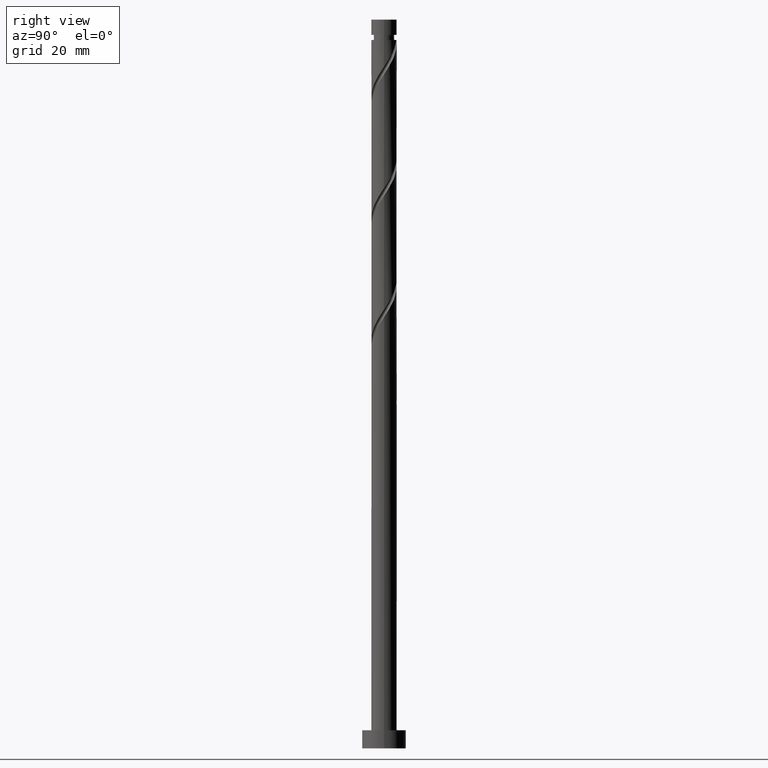
[diagram: clean part render]
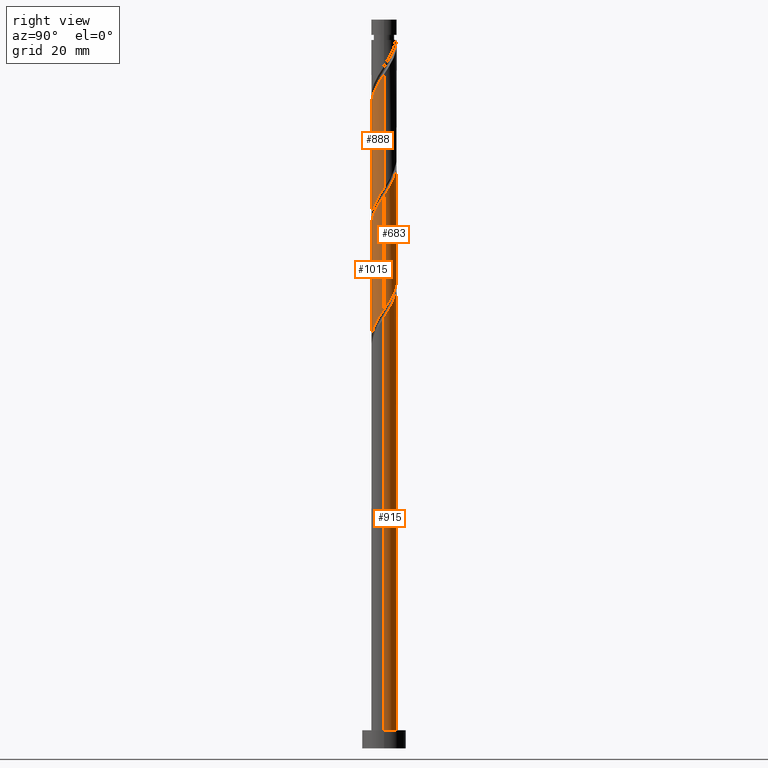
[diagram: same view with one multi-face feature highlighted, each face labeled with its STEP entity id]
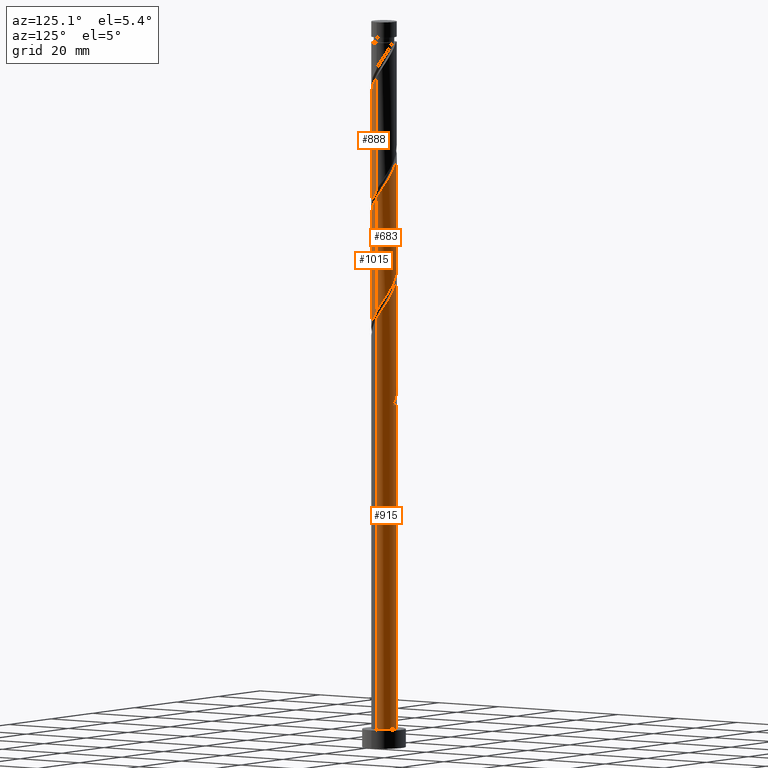
[diagram: same view with one multi-face feature highlighted, each face labeled with its STEP entity id]
A machine part, right view. The highlighted faces form ONE feature: a constant-radius fillet chain: 4 tangent blend faces with common blend radius 3.5 mm. The faces share edges in the B-rep.
A second angle (auxiliary view) of the same feature is appended — it is thin or edge-on in the first view.
Their STEP definitions:
[1] entity #888 (Cylinder):
#2 = CARTESIAN_POINT ( 'NONE',  ( 3.500000000000000444, 4.994564004169114618E-15, 153.7891649966503280 ) ) ;
#12 = CARTESIAN_POINT ( 'NONE',  ( 2.318179077886496575, -2.622221531993313093, 180.5033761192180464 ) ) ;
#23 = CARTESIAN_POINT ( 'NONE',  ( -3.132860395318851854, -1.560508168335766666, 170.7811538969958463 ) ) ;
#31 = DIRECTION ( 'NONE',  ( -1.000000000000000000, 0.000000000000000000, 0.000000000000000000 ) ) ;
#45 = CARTESIAN_POINT ( 'NONE',  ( -3.500000000000000000, -0.1075968308018544345, 137.2856620180118341 ) ) ;
#59 = EDGE_CURVE ( 'NONE', #582, #753, #647, .T. ) ;
#84 = CARTESIAN_POINT ( 'NONE',  ( 3.500000000000005329, -1.106580048827880409E-15, 184.9953650195635362 ) ) ;
#100 = CARTESIAN_POINT ( 'NONE',  ( 3.500000000000000000, 4.286263797015736595E-16, 200.0000000000000000 ) ) ;
#133 = CARTESIAN_POINT ( 'NONE',  ( -3.172338736701779460, -1.548737742842089427, 139.5311538969958463 ) ) ;
#142 = CARTESIAN_POINT ( 'NONE',  ( 1.148059272699402555, -3.338305193185787889, 178.4200427858846751 ) ) ;
#151 = CARTESIAN_POINT ( 'NONE',  ( 0.2149904810675259126, -3.493390773024161788, 145.7811538969958463 ) ) ;
#162 = CARTESIAN_POINT ( 'NONE',  ( 3.318712737967946413, -1.111820922113510024, 183.2811538969958463 ) ) ;
#175 = CARTESIAN_POINT ( 'NONE',  ( 3.430000000000000160, -0.6964912059746354300, 152.7255983414402465 ) ) ;
#186 = LINE ( 'NONE', #614, #1600 ) ;
#210 = ORIENTED_EDGE ( 'NONE', *, *, #332, .F. ) ;
#275 = CARTESIAN_POINT ( 'NONE',  ( 1.548737742842089427, -3.172338736701779460, 147.8644872303291322 ) ) ;
#285 = CARTESIAN_POINT ( 'NONE',  ( 1.932882604688395789, -2.917869914251319141, 148.5589316747735893 ) ) ;
#287 = ORIENTED_EDGE ( 'NONE', *, *, #59, .F. ) ;
#292 = CARTESIAN_POINT ( 'NONE',  ( 3.338305193185780340, -1.148059272699405664, 152.0311538969959031 ) ) ;
#303 = CARTESIAN_POINT ( 'NONE',  ( -3.318712737967941973, -1.111820922113505139, 138.8367094525513608 ) ) ;
#332 = EDGE_CURVE ( 'NONE', #753, #1145, #808, .T. ) ;
#361 = EDGE_CURVE ( 'NONE', #1620, #582, #1708, .T. ) ;
#422 = CARTESIAN_POINT ( 'NONE',  ( -0.6964912059746352080, -3.430000000000000160, 144.3922650081069037 ) ) ;
#433 = CARTESIAN_POINT ( 'NONE',  ( 3.132860395318845192, -1.560508168335767554, 151.3367094525513608 ) ) ;
#451 = CARTESIAN_POINT ( 'NONE',  ( -1.972957063972128333, -2.927415597451910934, 142.3089316747736177 ) ) ;
#475 = EDGE_CURVE ( 'NONE', #1620, #1145, #186, .T. ) ;
#539 = FACE_OUTER_BOUND ( 'NONE', #979, .T. ) ;
#557 = CARTESIAN_POINT ( 'NONE',  ( 1.111820922113505139, -3.318712737967942861, 147.1700427858846467 ) ) ;
#569 = CARTESIAN_POINT ( 'NONE',  ( -2.663401091800861042, -2.317027466534704150, 140.9200427858847036 ) ) ;
#580 = CARTESIAN_POINT ( 'NONE',  ( -2.917869914251318697, -1.932882604688397343, 140.2255983414402465 ) ) ;
#582 = VERTEX_POINT ( 'NONE', #84 ) ;
#588 = CARTESIAN_POINT ( 'NONE',  ( -0.6749041013849236270, -3.465086739234110702, 175.6422650081069605 ) ) ;
#614 = CARTESIAN_POINT ( 'NONE',  ( -3.500000000000000000, 0.000000000000000000, 200.0000000000000000 ) ) ;
#647 = LINE ( 'NONE', #100, #1307 ) ;
#684 = CARTESIAN_POINT ( 'NONE',  ( -3.430000000000005045, -0.6964912059746350970, 169.3922650081069605 ) ) ;
#694 = CARTESIAN_POINT ( 'NONE',  ( -3.500000000000005329, -1.121533833271500447E-15, 168.3286983528968790 ) ) ;
#704 = CARTESIAN_POINT ( 'NONE',  ( -1.148059272699404110, -3.338305193185782116, 143.6978205636625034 ) ) ;
#727 = CARTESIAN_POINT ( 'NONE',  ( -1.548737742842094312, -3.172338736701781681, 174.2533761192180179 ) ) ;
#729 = ORIENTED_EDGE ( 'NONE', *, *, #361, .F. ) ;
#753 = VERTEX_POINT ( 'NONE', #2 ) ;
#808 =( BOUNDED_CURVE ( )  B_SPLINE_CURVE ( 2, ( #951, #1506, #175, #292, #433, #1476, #961, #1487, #285, #275, #557, #1079, #151, #811, #422, #704, #1218, #451, #1087, #569, #580, #133, #303, #1230, #1376, #45, #1108 ),
 .UNSPECIFIED., .F., .T. ) 
 B_SPLINE_CURVE_WITH_KNOTS ( ( 3, 2, 2, 2, 2, 2, 2, 2, 2, 2, 2, 2, 2, 3 ),
 ( 0.5545317669814462391, 0.5625000000000000000, 0.5729166666666666297, 0.5833333333333333703, 0.5937500000000000000, 0.6041666666666666297, 0.6145833333333333703, 0.6250000000000000000, 0.6354166666666666297, 0.6458333333333333703, 0.6562500000000000000, 0.6666666666666666297, 0.6770833333333333703, 0.6795317669814463502 ),
 .UNSPECIFIED. ) 
 CURVE ( )  GEOMETRIC_REPRESENTATION_ITEM ( )  RATIONAL_B_SPLINE_CURVE ( ( 0.9062941362546433899, 0.9031415850403474721, 0.9090909090909231605, 0.9013135103398414172, 0.9090909090909231605, 0.9013135103398414172, 0.9090909090909231605, 0.9013135103398414172, 0.9090909090909231605, 0.9013135103398414172, 0.9090909090909231605, 0.9013135103398414172, 0.9090909090909231605, 0.9013135103398414172, 0.9090909090909231605, 0.9013135103398414172, 0.9090909090909231605, 0.9013135103398414172, 0.9090909090909231605, 0.9013135103398414172, 0.9090909090909231605, 0.9013135103398414172, 0.9090909090909231605, 0.9013135103398414172, 0.9090909090909231605, 0.9072628343904167725, 0.9062941362546432789 ) ) 
 REPRESENTATION_ITEM ( '' )  );
#811 = CARTESIAN_POINT ( 'NONE',  ( -0.2449231392498680548, -3.521694806814219092, 145.0867094525513892 ) ) ;
#822 = CARTESIAN_POINT ( 'NONE',  ( 0.2449231392498654736, -3.521694806814223089, 177.0311538969958463 ) ) ;
#838 = CARTESIAN_POINT ( 'NONE',  ( 2.917869914251321362, -1.932882604688402672, 181.8922650081069605 ) ) ;
#850 = CARTESIAN_POINT ( 'NONE',  ( -3.338305193185787889, -1.148059272699402777, 170.0867094525513608 ) ) ;
#883 = CARTESIAN_POINT ( 'NONE',  ( 3.500000000000005329, -1.106580048827880409E-15, 184.9953650195635362 ) ) ;
#888 = ADVANCED_FACE ( 'NONE', ( #539 ), #1485, .T. ) ;
#891 = CARTESIAN_POINT ( 'NONE',  ( 3.493390773024167117, -0.2149904810675309919, 184.6700427858847320 ) ) ;
#901 = CARTESIAN_POINT ( 'NONE',  ( -3.500000000000005329, -1.121533833271500447E-15, 168.3286983528968790 ) ) ;
#940 = CARTESIAN_POINT ( 'NONE',  ( -1.111820922113509580, -3.318712737967946413, 174.9478205636624750 ) ) ;
#951 = CARTESIAN_POINT ( 'NONE',  ( 3.500000000000000888, 4.994564004169114618E-15, 153.7891649966503280 ) ) ;
#961 = CARTESIAN_POINT ( 'NONE',  ( 2.622221531993306876, -2.318179077886495243, 149.9478205636624750 ) ) ;
#970 = CARTESIAN_POINT ( 'NONE',  ( -3.500000000000005329, -0.3517632353407247892, 168.8621247220862074 ) ) ;
#979 = EDGE_LOOP ( 'NONE', ( #287, #729, #1081, #210 ) ) ;
#988 = CARTESIAN_POINT ( 'NONE',  ( 3.465086739234110702, -0.6749041013849255144, 183.9755983414402465 ) ) ;
#1014 = CARTESIAN_POINT ( 'NONE',  ( 3.500000000000005329, -0.1075968308018595831, 184.8322013315354013 ) ) ;
#1079 = CARTESIAN_POINT ( 'NONE',  ( 0.6749041013849200743, -3.465086739234108482, 146.4755983414403033 ) ) ;
#1081 = ORIENTED_EDGE ( 'NONE', *, *, #475, .T. ) ;
#1084 = CARTESIAN_POINT ( 'NONE',  ( 0.000000000000000000, 0.000000000000000000, 200.0000000000000000 ) ) ;
#1087 = CARTESIAN_POINT ( 'NONE',  ( -2.318179077886494799, -2.622221531993306876, 141.6144872303291322 ) ) ;
#1097 = CARTESIAN_POINT ( 'NONE',  ( -1.932882604688401118, -2.917869914251321806, 173.5589316747735893 ) ) ;
#1108 = CARTESIAN_POINT ( 'NONE',  ( -3.500000000000000444, 3.887983955341227109E-15, 137.1224983299836993 ) ) ;
#1120 = CARTESIAN_POINT ( 'NONE',  ( -0.2149904810675291877, -3.493390773024167117, 176.3367094525514176 ) ) ;
#1145 = VERTEX_POINT ( 'NONE', #1709 ) ;
#1209 = CARTESIAN_POINT ( 'NONE',  ( -2.927415597451915819, -1.972957063972129221, 171.4755983414402465 ) ) ;
#1218 = CARTESIAN_POINT ( 'NONE',  ( -1.560508168335765555, -3.132860395318846081, 143.0033761192180464 ) ) ;
#1230 = CARTESIAN_POINT ( 'NONE',  ( -3.465086739234107593, -0.6749041013849210735, 138.1422650081069321 ) ) ;
#1243 = CARTESIAN_POINT ( 'NONE',  ( -2.622221531993312649, -2.318179077886495687, 172.1700427858847320 ) ) ;
#1307 = VECTOR ( 'NONE', #1601, 1000.000000000000000 ) ;
#1348 = CARTESIAN_POINT ( 'NONE',  ( 0.6964912059746349859, -3.430000000000005045, 177.7255983414402465 ) ) ;
#1366 = CARTESIAN_POINT ( 'NONE',  ( 3.172338736701781681, -1.548737742842094312, 182.5867094525513892 ) ) ;
#1376 = CARTESIAN_POINT ( 'NONE',  ( -3.493390773024161788, -0.2149904810675270228, 137.4478205636624750 ) ) ;
#1424 = AXIS2_PLACEMENT_3D ( 'NONE', #1084, #1504, #31 ) ;
#1476 = CARTESIAN_POINT ( 'NONE',  ( 2.927415597451909601, -1.972957063972129665, 150.6422650081068753 ) ) ;
#1485 = CYLINDRICAL_SURFACE ( 'NONE', #1424, 3.500000000000000000 ) ;
#1487 = CARTESIAN_POINT ( 'NONE',  ( 2.317027466534703262, -2.663401091800861042, 149.2533761192180748 ) ) ;
#1497 = CARTESIAN_POINT ( 'NONE',  ( 1.972957063972127889, -2.927415597451915819, 179.8089316747735609 ) ) ;
#1504 = DIRECTION ( 'NONE',  ( -0.000000000000000000, -0.000000000000000000, -1.000000000000000000 ) ) ;
#1506 = CARTESIAN_POINT ( 'NONE',  ( 3.500000000000001776, -0.3517632353407225687, 153.2557386274610849 ) ) ;
#1600 = VECTOR ( 'NONE', #1678, 1000.000000000000000 ) ;
#1601 = DIRECTION ( 'NONE',  ( -0.000000000000000000, -0.000000000000000000, -1.000000000000000000 ) ) ;
#1618 = CARTESIAN_POINT ( 'NONE',  ( -2.317027466534708591, -2.663401091800862375, 172.8644872303291322 ) ) ;
#1620 = VERTEX_POINT ( 'NONE', #901 ) ;
#1625 = CARTESIAN_POINT ( 'NONE',  ( 2.663401091800862375, -2.317027466534708591, 181.1978205636624466 ) ) ;
#1638 = CARTESIAN_POINT ( 'NONE',  ( 1.560508168335765333, -3.132860395318852298, 179.1144872303291606 ) ) ;
#1678 = DIRECTION ( 'NONE',  ( -0.000000000000000000, -0.000000000000000000, -1.000000000000000000 ) ) ;
#1708 =( BOUNDED_CURVE ( )  B_SPLINE_CURVE ( 2, ( #694, #970, #684, #850, #23, #1209, #1243, #1618, #1097, #727, #940, #588, #1120, #822, #1348, #142, #1638, #1497, #12, #1625, #838, #1366, #162, #988, #891, #1014, #883 ),
 .UNSPECIFIED., .F., .T. ) 
 B_SPLINE_CURVE_WITH_KNOTS ( ( 3, 2, 2, 2, 2, 2, 2, 2, 2, 2, 2, 2, 2, 3 ),
 ( 0.5545317669814462391, 0.5625000000000000000, 0.5729166666666667407, 0.5833333333333332593, 0.5937500000000000000, 0.6041666666666667407, 0.6145833333333332593, 0.6250000000000000000, 0.6354166666666667407, 0.6458333333333332593, 0.6562500000000000000, 0.6666666666666667407, 0.6770833333333332593, 0.6795317669814462391 ),
 .UNSPECIFIED. ) 
 CURVE ( )  GEOMETRIC_REPRESENTATION_ITEM ( )  RATIONAL_B_SPLINE_CURVE ( ( 0.9062941362546491630, 0.9031415850403534673, 0.9090909090909288226, 0.9013135103398473014, 0.9090909090909288226, 0.9013135103398473014, 0.9090909090909288226, 0.9013135103398473014, 0.9090909090909288226, 0.9013135103398473014, 0.9090909090909288226, 0.9013135103398473014, 0.9090909090909288226, 0.9013135103398473014, 0.9090909090909288226, 0.9013135103398473014, 0.9090909090909288226, 0.9013135103398473014, 0.9090909090909288226, 0.9013135103398473014, 0.9090909090909288226, 0.9013135103398473014, 0.9090909090909288226, 0.9013135103398473014, 0.9090909090909288226, 0.9072628343904226567, 0.9062941362546491630 ) ) 
 REPRESENTATION_ITEM ( '' )  );
#1709 = CARTESIAN_POINT ( 'NONE',  ( -3.500000000000000444, 3.887983955341227109E-15, 137.1224983299836993 ) ) ;
[2] entity #683 (Cylinder):
#1 = CARTESIAN_POINT ( 'NONE',  ( -1.560508168335766888, 3.132860395318851410, 162.4478205636625319 ) ) ;
#10 = CARTESIAN_POINT ( 'NONE',  ( -2.318179077886497019, 2.622221531993312649, 163.8367094525513892 ) ) ;
#21 = CYLINDRICAL_SURFACE ( 'NONE', #874, 3.500000000000000000 ) ;
#24 =( BOUNDED_CURVE ( )  B_SPLINE_CURVE ( 2, ( #644, #1425, #1171, #1711, #763, #773, #510, #1703, #619, #1148, #1036, #1692, #227, #494, #1022, #1558, #1721, #517, #1296, #352, #215, #1550, #98, #1416, #1574, #1541, #1398 ),
 .UNSPECIFIED., .F., .T. ) 
 B_SPLINE_CURVE_WITH_KNOTS ( ( 3, 2, 2, 2, 2, 2, 2, 2, 2, 2, 2, 2, 2, 3 ),
 ( 0.6795317669814463502, 0.6875000000000000000, 0.6979166666666666297, 0.7083333333333333703, 0.7187500000000000000, 0.7291666666666666297, 0.7395833333333333703, 0.7500000000000000000, 0.7604166666666666297, 0.7708333333333333703, 0.7812500000000000000, 0.7916666666666666297, 0.8020833333333333703, 0.8045317669814462391 ),
 .UNSPECIFIED. ) 
 CURVE ( )  GEOMETRIC_REPRESENTATION_ITEM ( )  RATIONAL_B_SPLINE_CURVE ( ( 0.9062941362546432789, 0.9031415850403476941, 0.9090909090909231605, 0.9013135103398414172, 0.9090909090909231605, 0.9013135103398414172, 0.9090909090909231605, 0.9013135103398414172, 0.9090909090909231605, 0.9013135103398414172, 0.9090909090909231605, 0.9013135103398414172, 0.9090909090909231605, 0.9013135103398414172, 0.9090909090909231605, 0.9013135103398414172, 0.9090909090909231605, 0.9013135103398414172, 0.9090909090909231605, 0.9013135103398414172, 0.9090909090909231605, 0.9013135103398414172, 0.9090909090909231605, 0.9013135103398414172, 0.9090909090909231605, 0.9072628343904168835, 0.9062941362546433899 ) ) 
 REPRESENTATION_ITEM ( '' )  );
#98 = CARTESIAN_POINT ( 'NONE',  ( 3.318712737967942861, 1.111820922113503807, 122.1700427858847178 ) ) ;
#117 = CARTESIAN_POINT ( 'NONE',  ( 3.500000000000003109, 0.3517632353407309509, 152.1954580554194933 ) ) ;
#130 = CARTESIAN_POINT ( 'NONE',  ( 3.500000000000004885, 4.486135333086002626E-17, 151.6620316862302218 ) ) ;
#186 = LINE ( 'NONE', #614, #1600 ) ;
#215 = CARTESIAN_POINT ( 'NONE',  ( 2.917869914251318697, 1.932882604688396899, 123.5589316747736035 ) ) ;
#227 = CARTESIAN_POINT ( 'NONE',  ( -0.2149904810675273836, 3.493390773024161788, 129.1144872303291322 ) ) ;
#240 = CARTESIAN_POINT ( 'NONE',  ( -0.6964912059746346529, 3.430000000000005045, 161.0589316747736461 ) ) ;
#254 = CARTESIAN_POINT ( 'NONE',  ( 0.6749041013849257364, 3.465086739234110702, 158.9755983414402749 ) ) ;
#271 = CARTESIAN_POINT ( 'NONE',  ( 2.317027466534709923, 2.663401091800861931, 156.1978205636625034 ) ) ;
#280 = LINE ( 'NONE', #1076, #1666 ) ;
#294 = EDGE_LOOP ( 'NONE', ( #793, #1594, #306, #590 ) ) ;
#306 = ORIENTED_EDGE ( 'NONE', *, *, #1635, .F. ) ;
#352 = CARTESIAN_POINT ( 'NONE',  ( 2.663401091800861931, 2.317027466534703262, 124.2533761192180748 ) ) ;
#386 = CARTESIAN_POINT ( 'NONE',  ( 3.338305193185787889, 1.148059272699402333, 153.4200427858847320 ) ) ;
#388 =( BOUNDED_CURVE ( )  B_SPLINE_CURVE ( 2, ( #130, #117, #537, #386, #923, #530, #1344, #271, #410, #1597, #1458, #254, #947, #938, #240, #1464, #1, #801, #10, #1728, #787, #1077, #1735, #1043, #1743, #1322, #525 ),
 .UNSPECIFIED., .F., .T. ) 
 B_SPLINE_CURVE_WITH_KNOTS ( ( 3, 2, 2, 2, 2, 2, 2, 2, 2, 2, 2, 2, 2, 3 ),
 ( 0.4295317669814465167, 0.4375000000000000000, 0.4479166666666666297, 0.4583333333333333703, 0.4687500000000000000, 0.4791666666666666297, 0.4895833333333333703, 0.5000000000000000000, 0.5104166666666667407, 0.5208333333333332593, 0.5312500000000000000, 0.5416666666666667407, 0.5520833333333332593, 0.5545317669814462391 ),
 .UNSPECIFIED. ) 
 CURVE ( )  GEOMETRIC_REPRESENTATION_ITEM ( )  RATIONAL_B_SPLINE_CURVE ( ( 0.9062941362546489410, 0.9031415850403536894, 0.9090909090909288226, 0.9013135103398473014, 0.9090909090909288226, 0.9013135103398473014, 0.9090909090909288226, 0.9013135103398473014, 0.9090909090909288226, 0.9013135103398473014, 0.9090909090909288226, 0.9013135103398473014, 0.9090909090909288226, 0.9013135103398473014, 0.9090909090909288226, 0.9013135103398473014, 0.9090909090909288226, 0.9013135103398473014, 0.9090909090909288226, 0.9013135103398473014, 0.9090909090909288226, 0.9013135103398473014, 0.9090909090909288226, 0.9013135103398473014, 0.9090909090909288226, 0.9072628343904226567, 0.9062941362546491630 ) ) 
 REPRESENTATION_ITEM ( '' )  );
#410 = CARTESIAN_POINT ( 'NONE',  ( 1.932882604688402006, 2.917869914251321806, 156.8922650081069605 ) ) ;
#425 = VERTEX_POINT ( 'NONE', #1129 ) ;
#475 = EDGE_CURVE ( 'NONE', #1620, #1145, #186, .T. ) ;
#494 = CARTESIAN_POINT ( 'NONE',  ( 0.2449231392498670834, 3.521694806814217760, 128.4200427858847036 ) ) ;
#510 = CARTESIAN_POINT ( 'NONE',  ( -2.622221531993307764, 2.318179077886493467, 133.2811538969958178 ) ) ;
#517 = CARTESIAN_POINT ( 'NONE',  ( 1.972957063972130110, 2.927415597451909601, 125.6422650081069321 ) ) ;
#525 = CARTESIAN_POINT ( 'NONE',  ( -3.500000000000005329, -1.121533833271500447E-15, 168.3286983528968790 ) ) ;
#530 = CARTESIAN_POINT ( 'NONE',  ( 2.927415597451915819, 1.972957063972127445, 154.8089316747736461 ) ) ;
#537 = CARTESIAN_POINT ( 'NONE',  ( 3.430000000000005045, 0.6964912059746347639, 152.7255983414402465 ) ) ;
#590 = ORIENTED_EDGE ( 'NONE', *, *, #475, .F. ) ;
#614 = CARTESIAN_POINT ( 'NONE',  ( -3.500000000000000000, 0.000000000000000000, 200.0000000000000000 ) ) ;
#619 = CARTESIAN_POINT ( 'NONE',  ( -1.932882604688397787, 2.917869914251318697, 131.8922650081069321 ) ) ;
#622 = VERTEX_POINT ( 'NONE', #1384 ) ;
#644 = CARTESIAN_POINT ( 'NONE',  ( -3.500000000000000444, 3.887983955341227109E-15, 137.1224983299836993 ) ) ;
#683 = ADVANCED_FACE ( 'NONE', ( #835 ), #21, .T. ) ;
#763 = CARTESIAN_POINT ( 'NONE',  ( -3.132860395318846081, 1.560508168335765333, 134.6700427858846751 ) ) ;
#773 = CARTESIAN_POINT ( 'NONE',  ( -2.927415597451910934, 1.972957063972127889, 133.9755983414403033 ) ) ;
#787 = CARTESIAN_POINT ( 'NONE',  ( -2.917869914251322694, 1.932882604688401118, 165.2255983414403033 ) ) ;
#793 = ORIENTED_EDGE ( 'NONE', *, *, #1704, .F. ) ;
#801 = CARTESIAN_POINT ( 'NONE',  ( -1.972957063972130554, 2.927415597451914930, 163.1422650081069037 ) ) ;
#835 = FACE_OUTER_BOUND ( 'NONE', #294, .T. ) ;
#874 = AXIS2_PLACEMENT_3D ( 'NONE', #1616, #1068, #1644 ) ;
#901 = CARTESIAN_POINT ( 'NONE',  ( -3.500000000000005329, -1.121533833271500447E-15, 168.3286983528968790 ) ) ;
#923 = CARTESIAN_POINT ( 'NONE',  ( 3.132860395318852298, 1.560508168335765333, 154.1144872303292175 ) ) ;
#938 = CARTESIAN_POINT ( 'NONE',  ( -0.2449231392498632809, 3.521694806814223089, 160.3644872303291038 ) ) ;
#947 = CARTESIAN_POINT ( 'NONE',  ( 0.2149904810675311861, 3.493390773024167117, 159.6700427858847604 ) ) ;
#1022 = CARTESIAN_POINT ( 'NONE',  ( 0.6964912059746355411, 3.430000000000000160, 127.7255983414402607 ) ) ;
#1036 = CARTESIAN_POINT ( 'NONE',  ( -1.111820922113506027, 3.318712737967941973, 130.5033761192180179 ) ) ;
#1043 = CARTESIAN_POINT ( 'NONE',  ( -3.465086739234110702, 0.6749041013849235160, 167.3089316747735893 ) ) ;
#1068 = DIRECTION ( 'NONE',  ( -0.000000000000000000, -0.000000000000000000, -1.000000000000000000 ) ) ;
#1076 = CARTESIAN_POINT ( 'NONE',  ( 3.500000000000000000, 4.286263797015736595E-16, 200.0000000000000000 ) ) ;
#1077 = CARTESIAN_POINT ( 'NONE',  ( -3.172338736701781681, 1.548737742842093201, 165.9200427858846751 ) ) ;
#1129 = CARTESIAN_POINT ( 'NONE',  ( 3.500000000000004885, 4.486135333086002626E-17, 151.6620316862302218 ) ) ;
#1145 = VERTEX_POINT ( 'NONE', #1709 ) ;
#1148 = CARTESIAN_POINT ( 'NONE',  ( -1.548737742842090315, 3.172338736701779016, 131.1978205636625319 ) ) ;
#1171 = CARTESIAN_POINT ( 'NONE',  ( -3.430000000000000160, 0.6964912059746349859, 136.0589316747735893 ) ) ;
#1296 = CARTESIAN_POINT ( 'NONE',  ( 2.318179077886495243, 2.622221531993306431, 124.9478205636624892 ) ) ;
#1312 = EDGE_CURVE ( 'NONE', #425, #622, #280, .T. ) ;
#1322 = CARTESIAN_POINT ( 'NONE',  ( -3.500000000000005329, 0.1075968308018573766, 168.1655346648687157 ) ) ;
#1344 = CARTESIAN_POINT ( 'NONE',  ( 2.622221531993313981, 2.318179077886494799, 155.5033761192180464 ) ) ;
#1384 = CARTESIAN_POINT ( 'NONE',  ( 3.500000000000000444, 4.994564004169114618E-15, 120.4558316633170136 ) ) ;
#1398 = CARTESIAN_POINT ( 'NONE',  ( 3.500000000000000888, 4.994564004169114618E-15, 120.4558316633170136 ) ) ;
#1416 = CARTESIAN_POINT ( 'NONE',  ( 3.465086739234108482, 0.6749041013849197412, 121.4755983414403033 ) ) ;
#1425 = CARTESIAN_POINT ( 'NONE',  ( -3.500000000000000444, 0.3517632353407270096, 136.5890719607943993 ) ) ;
#1458 = CARTESIAN_POINT ( 'NONE',  ( 1.111820922113510024, 3.318712737967945969, 158.2811538969958178 ) ) ;
#1464 = CARTESIAN_POINT ( 'NONE',  ( -1.148059272699403666, 3.338305193185787001, 161.7533761192180179 ) ) ;
#1493 = DIRECTION ( 'NONE',  ( -0.000000000000000000, -0.000000000000000000, -1.000000000000000000 ) ) ;
#1541 = CARTESIAN_POINT ( 'NONE',  ( 3.500000000000000000, 0.1075968308018582786, 120.6189953513451627 ) ) ;
#1550 = CARTESIAN_POINT ( 'NONE',  ( 3.172338736701779460, 1.548737742842088094, 122.8644872303291748 ) ) ;
#1558 = CARTESIAN_POINT ( 'NONE',  ( 1.148059272699406108, 3.338305193185780340, 127.0311538969958178 ) ) ;
#1574 = CARTESIAN_POINT ( 'NONE',  ( 3.493390773024161788, 0.2149904810675258293, 120.7811538969958463 ) ) ;
#1594 = ORIENTED_EDGE ( 'NONE', *, *, #1312, .T. ) ;
#1597 = CARTESIAN_POINT ( 'NONE',  ( 1.548737742842094534, 3.172338736701781681, 157.5867094525513323 ) ) ;
#1600 = VECTOR ( 'NONE', #1678, 1000.000000000000000 ) ;
#1616 = CARTESIAN_POINT ( 'NONE',  ( 0.000000000000000000, 0.000000000000000000, 200.0000000000000000 ) ) ;
#1620 = VERTEX_POINT ( 'NONE', #901 ) ;
#1635 = EDGE_CURVE ( 'NONE', #1145, #622, #24, .T. ) ;
#1644 = DIRECTION ( 'NONE',  ( -1.000000000000000000, 0.000000000000000000, 0.000000000000000000 ) ) ;
#1666 = VECTOR ( 'NONE', #1493, 1000.000000000000000 ) ;
#1678 = DIRECTION ( 'NONE',  ( -0.000000000000000000, -0.000000000000000000, -1.000000000000000000 ) ) ;
#1692 = CARTESIAN_POINT ( 'NONE',  ( -0.6749041013849218507, 3.465086739234107593, 129.8089316747736177 ) ) ;
#1703 = CARTESIAN_POINT ( 'NONE',  ( -2.317027466534704150, 2.663401091800860598, 132.5867094525514176 ) ) ;
#1704 = EDGE_CURVE ( 'NONE', #425, #1620, #388, .T. ) ;
#1709 = CARTESIAN_POINT ( 'NONE',  ( -3.500000000000000444, 3.887983955341227109E-15, 137.1224983299836993 ) ) ;
#1711 = CARTESIAN_POINT ( 'NONE',  ( -3.338305193185782116, 1.148059272699403222, 135.3644872303291322 ) ) ;
#1721 = CARTESIAN_POINT ( 'NONE',  ( 1.560508168335767554, 3.132860395318845192, 126.3367094525513608 ) ) ;
#1728 = CARTESIAN_POINT ( 'NONE',  ( -2.663401091800863263, 2.317027466534707703, 164.5311538969957610 ) ) ;
#1735 = CARTESIAN_POINT ( 'NONE',  ( -3.318712737967946413, 1.111820922113509358, 166.6144872303291891 ) ) ;
#1743 = CARTESIAN_POINT ( 'NONE',  ( -3.493390773024167117, 0.2149904810675289657, 168.0033761192180748 ) ) ;
[3] entity #1015 (Cylinder):
#5 = EDGE_LOOP ( 'NONE', ( #1750, #852, #1212, #954 ) ) ;
#66 = CARTESIAN_POINT ( 'NONE',  ( -3.500000000000000444, 3.887983955341227109E-15, 103.7891649966503280 ) ) ;
#89 = CARTESIAN_POINT ( 'NONE',  ( -1.111820922113509580, -3.318712737967946413, 141.6144872303291322 ) ) ;
#112 = CARTESIAN_POINT ( 'NONE',  ( 3.132860395318845192, -1.560508168335767554, 118.0033761192180322 ) ) ;
#125 =( BOUNDED_CURVE ( )  B_SPLINE_CURVE ( 2, ( #1566, #523, #235, #239, #778, #1719, #794, #516, #1283, #1184, #89, #786, #1048, #1415, #761, #1734, #385, #922, #1041, #1449, #245, #1313, #677, #574, #1606, #1083, #1104 ),
 .UNSPECIFIED., .F., .T. ) 
 B_SPLINE_CURVE_WITH_KNOTS ( ( 3, 2, 2, 2, 2, 2, 2, 2, 2, 2, 2, 2, 2, 3 ),
 ( 0.3045317669814462946, 0.3125000000000000000, 0.3229166666666666297, 0.3333333333333333703, 0.3437500000000000000, 0.3541666666666666297, 0.3645833333333333703, 0.3750000000000000000, 0.3854166666666666297, 0.3958333333333333703, 0.4062500000000000000, 0.4166666666666666297, 0.4270833333333333703, 0.4295317669814465167 ),
 .UNSPECIFIED. ) 
 CURVE ( )  GEOMETRIC_REPRESENTATION_ITEM ( )  RATIONAL_B_SPLINE_CURVE ( ( 0.9062941362546490520, 0.9031415850403534673, 0.9090909090909288226, 0.9013135103398473014, 0.9090909090909288226, 0.9013135103398473014, 0.9090909090909288226, 0.9013135103398473014, 0.9090909090909288226, 0.9013135103398473014, 0.9090909090909288226, 0.9013135103398473014, 0.9090909090909288226, 0.9013135103398473014, 0.9090909090909288226, 0.9013135103398473014, 0.9090909090909288226, 0.9013135103398473014, 0.9090909090909288226, 0.9013135103398473014, 0.9090909090909288226, 0.9013135103398473014, 0.9090909090909288226, 0.9013135103398473014, 0.9090909090909288226, 0.9072628343904224346, 0.9062941362546489410 ) ) 
 REPRESENTATION_ITEM ( '' )  );
#137 = CARTESIAN_POINT ( 'NONE',  ( -3.500000000000000000, 0.000000000000000000, 200.0000000000000000 ) ) ;
#174 = FACE_OUTER_BOUND ( 'NONE', #5, .T. ) ;
#191 =( BOUNDED_CURVE ( )  B_SPLINE_CURVE ( 2, ( #932, #1582, #1427, #1590, #112, #381, #1737, #917, #533, #390, #925, #1300, #542, #1451, #1196, #241, #788, #655, #1051, #1730, #1308, #1746, #1178, #1460, #1070, #256, #804 ),
 .UNSPECIFIED., .F., .T. ) 
 B_SPLINE_CURVE_WITH_KNOTS ( ( 3, 2, 2, 2, 2, 2, 2, 2, 2, 2, 2, 2, 2, 3 ),
 ( 0.8045317669814462391, 0.8125000000000000000, 0.8229166666666666297, 0.8333333333333333703, 0.8437500000000000000, 0.8541666666666666297, 0.8645833333333333703, 0.8750000000000000000, 0.8854166666666666297, 0.8958333333333333703, 0.9062500000000000000, 0.9166666666666666297, 0.9270833333333333703, 0.9295317669814463502 ),
 .UNSPECIFIED. ) 
 CURVE ( )  GEOMETRIC_REPRESENTATION_ITEM ( )  RATIONAL_B_SPLINE_CURVE ( ( 0.9062941362546433899, 0.9031415850403474721, 0.9090909090909231605, 0.9013135103398414172, 0.9090909090909231605, 0.9013135103398414172, 0.9090909090909231605, 0.9013135103398414172, 0.9090909090909231605, 0.9013135103398414172, 0.9090909090909231605, 0.9013135103398414172, 0.9090909090909231605, 0.9013135103398414172, 0.9090909090909231605, 0.9013135103398414172, 0.9090909090909231605, 0.9013135103398414172, 0.9090909090909231605, 0.9013135103398414172, 0.9090909090909231605, 0.9013135103398414172, 0.9090909090909231605, 0.9013135103398414172, 0.9090909090909231605, 0.9072628343904167725, 0.9062941362546432789 ) ) 
 REPRESENTATION_ITEM ( '' )  );
#202 = EDGE_CURVE ( 'NONE', #622, #1403, #191, .T. ) ;
#235 = CARTESIAN_POINT ( 'NONE',  ( -3.430000000000005045, -0.6964912059746350970, 136.0589316747735893 ) ) ;
#239 = CARTESIAN_POINT ( 'NONE',  ( -3.338305193185787889, -1.148059272699402777, 136.7533761192180748 ) ) ;
#241 = CARTESIAN_POINT ( 'NONE',  ( -1.148059272699404110, -3.338305193185782116, 110.3644872303291606 ) ) ;
#245 = CARTESIAN_POINT ( 'NONE',  ( 2.917869914251321362, -1.932882604688402672, 148.5589316747736177 ) ) ;
#253 = DIRECTION ( 'NONE',  ( -0.000000000000000000, -0.000000000000000000, -1.000000000000000000 ) ) ;
#256 = CARTESIAN_POINT ( 'NONE',  ( -3.500000000000000000, -0.1075968308018544345, 103.9523286846784913 ) ) ;
#277 = VERTEX_POINT ( 'NONE', #440 ) ;
#280 = LINE ( 'NONE', #1076, #1666 ) ;
#289 = LINE ( 'NONE', #137, #1516 ) ;
#381 = CARTESIAN_POINT ( 'NONE',  ( 2.927415597451909601, -1.972957063972129665, 117.3089316747736035 ) ) ;
#385 = CARTESIAN_POINT ( 'NONE',  ( 1.560508168335765333, -3.132860395318852298, 145.7811538969958463 ) ) ;
#390 = CARTESIAN_POINT ( 'NONE',  ( 1.548737742842089427, -3.172338736701779460, 114.5311538969958036 ) ) ;
#425 = VERTEX_POINT ( 'NONE', #1129 ) ;
#440 = CARTESIAN_POINT ( 'NONE',  ( -3.500000000000004885, -2.272975235430241363E-15, 134.9953650195635362 ) ) ;
#492 = AXIS2_PLACEMENT_3D ( 'NONE', #741, #605, #1141 ) ;
#516 = CARTESIAN_POINT ( 'NONE',  ( -2.317027466534708591, -2.663401091800862375, 139.5311538969958178 ) ) ;
#523 = CARTESIAN_POINT ( 'NONE',  ( -3.500000000000005329, -0.3517632353407235679, 135.5287913887527793 ) ) ;
#533 = CARTESIAN_POINT ( 'NONE',  ( 1.932882604688395789, -2.917869914251319141, 115.2255983414403033 ) ) ;
#542 = CARTESIAN_POINT ( 'NONE',  ( 0.2149904810675259126, -3.493390773024161788, 112.4478205636624608 ) ) ;
#574 = CARTESIAN_POINT ( 'NONE',  ( 3.465086739234110702, -0.6749041013849255144, 150.6422650081069037 ) ) ;
#605 = DIRECTION ( 'NONE',  ( -0.000000000000000000, -0.000000000000000000, -1.000000000000000000 ) ) ;
#622 = VERTEX_POINT ( 'NONE', #1384 ) ;
#655 = CARTESIAN_POINT ( 'NONE',  ( -1.972957063972128333, -2.927415597451910934, 108.9755983414403033 ) ) ;
#677 = CARTESIAN_POINT ( 'NONE',  ( 3.318712737967946413, -1.111820922113510024, 149.9478205636625034 ) ) ;
#741 = CARTESIAN_POINT ( 'NONE',  ( 0.000000000000000000, 0.000000000000000000, 200.0000000000000000 ) ) ;
#761 = CARTESIAN_POINT ( 'NONE',  ( 0.6964912059746349859, -3.430000000000005045, 144.3922650081069605 ) ) ;
#778 = CARTESIAN_POINT ( 'NONE',  ( -3.132860395318851854, -1.560508168335766666, 137.4478205636625319 ) ) ;
#786 = CARTESIAN_POINT ( 'NONE',  ( -0.6749041013849236270, -3.465086739234110702, 142.3089316747735893 ) ) ;
#788 = CARTESIAN_POINT ( 'NONE',  ( -1.560508168335765555, -3.132860395318846081, 109.6700427858846894 ) ) ;
#794 = CARTESIAN_POINT ( 'NONE',  ( -2.622221531993312649, -2.318179077886495687, 138.8367094525513892 ) ) ;
#804 = CARTESIAN_POINT ( 'NONE',  ( -3.500000000000000444, 3.887983955341227109E-15, 103.7891649966503280 ) ) ;
#852 = ORIENTED_EDGE ( 'NONE', *, *, #1185, .F. ) ;
#917 = CARTESIAN_POINT ( 'NONE',  ( 2.317027466534703262, -2.663401091800861042, 115.9200427858847178 ) ) ;
#922 = CARTESIAN_POINT ( 'NONE',  ( 1.972957063972127889, -2.927415597451915819, 146.4755983414402465 ) ) ;
#925 = CARTESIAN_POINT ( 'NONE',  ( 1.111820922113505139, -3.318712737967942861, 113.8367094525513750 ) ) ;
#932 = CARTESIAN_POINT ( 'NONE',  ( 3.500000000000000888, 4.994564004169114618E-15, 120.4558316633170136 ) ) ;
#954 = ORIENTED_EDGE ( 'NONE', *, *, #202, .F. ) ;
#1015 = ADVANCED_FACE ( 'NONE', ( #174 ), #1268, .T. ) ;
#1041 = CARTESIAN_POINT ( 'NONE',  ( 2.318179077886496575, -2.622221531993313093, 147.1700427858847320 ) ) ;
#1048 = CARTESIAN_POINT ( 'NONE',  ( -0.2149904810675291877, -3.493390773024167117, 143.0033761192180464 ) ) ;
#1051 = CARTESIAN_POINT ( 'NONE',  ( -2.318179077886494799, -2.622221531993306876, 108.2811538969958178 ) ) ;
#1070 = CARTESIAN_POINT ( 'NONE',  ( -3.493390773024161788, -0.2149904810675270228, 104.1144872303291464 ) ) ;
#1076 = CARTESIAN_POINT ( 'NONE',  ( 3.500000000000000000, 4.286263797015736595E-16, 200.0000000000000000 ) ) ;
#1083 = CARTESIAN_POINT ( 'NONE',  ( 3.500000000000005773, -0.1075968308018511177, 151.4988679982020585 ) ) ;
#1104 = CARTESIAN_POINT ( 'NONE',  ( 3.500000000000004885, 4.486135333086002626E-17, 151.6620316862302218 ) ) ;
#1129 = CARTESIAN_POINT ( 'NONE',  ( 3.500000000000004885, 4.486135333086002626E-17, 151.6620316862302218 ) ) ;
#1141 = DIRECTION ( 'NONE',  ( -1.000000000000000000, 0.000000000000000000, 0.000000000000000000 ) ) ;
#1178 = CARTESIAN_POINT ( 'NONE',  ( -3.318712737967941973, -1.111820922113505139, 105.5033761192180464 ) ) ;
#1184 = CARTESIAN_POINT ( 'NONE',  ( -1.548737742842094312, -3.172338736701781681, 140.9200427858847320 ) ) ;
#1185 = EDGE_CURVE ( 'NONE', #277, #425, #125, .T. ) ;
#1196 = CARTESIAN_POINT ( 'NONE',  ( -0.6964912059746352080, -3.430000000000000160, 111.0589316747736035 ) ) ;
#1212 = ORIENTED_EDGE ( 'NONE', *, *, #1332, .T. ) ;
#1268 = CYLINDRICAL_SURFACE ( 'NONE', #492, 3.500000000000000000 ) ;
#1283 = CARTESIAN_POINT ( 'NONE',  ( -1.932882604688401118, -2.917869914251321806, 140.2255983414402465 ) ) ;
#1300 = CARTESIAN_POINT ( 'NONE',  ( 0.6749041013849200743, -3.465086739234108482, 113.1422650081069321 ) ) ;
#1308 = CARTESIAN_POINT ( 'NONE',  ( -2.917869914251318697, -1.932882604688397343, 106.8922650081069179 ) ) ;
#1312 = EDGE_CURVE ( 'NONE', #425, #622, #280, .T. ) ;
#1313 = CARTESIAN_POINT ( 'NONE',  ( 3.172338736701781681, -1.548737742842094312, 149.2533761192180464 ) ) ;
#1332 = EDGE_CURVE ( 'NONE', #277, #1403, #289, .T. ) ;
#1384 = CARTESIAN_POINT ( 'NONE',  ( 3.500000000000000444, 4.994564004169114618E-15, 120.4558316633170136 ) ) ;
#1403 = VERTEX_POINT ( 'NONE', #66 ) ;
#1415 = CARTESIAN_POINT ( 'NONE',  ( 0.2449231392498654736, -3.521694806814223089, 143.6978205636624466 ) ) ;
#1427 = CARTESIAN_POINT ( 'NONE',  ( 3.430000000000000160, -0.6964912059746354300, 119.3922650081069321 ) ) ;
#1449 = CARTESIAN_POINT ( 'NONE',  ( 2.663401091800862375, -2.317027466534708591, 147.8644872303291606 ) ) ;
#1451 = CARTESIAN_POINT ( 'NONE',  ( -0.2449231392498680548, -3.521694806814219092, 111.7533761192180606 ) ) ;
#1460 = CARTESIAN_POINT ( 'NONE',  ( -3.465086739234107593, -0.6749041013849210735, 104.8089316747736177 ) ) ;
#1493 = DIRECTION ( 'NONE',  ( -0.000000000000000000, -0.000000000000000000, -1.000000000000000000 ) ) ;
#1516 = VECTOR ( 'NONE', #253, 1000.000000000000000 ) ;
#1566 = CARTESIAN_POINT ( 'NONE',  ( -3.500000000000004441, -2.272975235430241363E-15, 134.9953650195635362 ) ) ;
#1582 = CARTESIAN_POINT ( 'NONE',  ( 3.500000000000001776, -0.3517632353407225687, 119.9224052941277563 ) ) ;
#1590 = CARTESIAN_POINT ( 'NONE',  ( 3.338305193185780340, -1.148059272699405664, 118.6978205636625034 ) ) ;
#1606 = CARTESIAN_POINT ( 'NONE',  ( 3.493390773024167117, -0.2149904810675309919, 151.3367094525513892 ) ) ;
#1666 = VECTOR ( 'NONE', #1493, 1000.000000000000000 ) ;
#1719 = CARTESIAN_POINT ( 'NONE',  ( -2.927415597451915819, -1.972957063972129221, 138.1422650081069321 ) ) ;
#1730 = CARTESIAN_POINT ( 'NONE',  ( -2.663401091800861042, -2.317027466534704150, 107.5867094525514176 ) ) ;
#1734 = CARTESIAN_POINT ( 'NONE',  ( 1.148059272699402555, -3.338305193185787889, 145.0867094525513608 ) ) ;
#1737 = CARTESIAN_POINT ( 'NONE',  ( 2.622221531993306876, -2.318179077886495243, 116.6144872303291464 ) ) ;
#1746 = CARTESIAN_POINT ( 'NONE',  ( -3.172338736701779460, -1.548737742842089427, 106.1978205636625319 ) ) ;
#1750 = ORIENTED_EDGE ( 'NONE', *, *, #1312, .F. ) ;
[4] entity #915 (Cylinder):
#11 = DIRECTION ( 'NONE',  ( -0.000000000000000000, -0.000000000000000000, -1.000000000000000000 ) ) ;
#39 = CARTESIAN_POINT ( 'NONE',  ( -3.500000000000000000, 0.000000000000000000, 200.0000000000000000 ) ) ;
#43 = CARTESIAN_POINT ( 'NONE',  ( -3.500000000000004885, 0.1075968308018608183, 101.4988679982020301 ) ) ;
#54 = CARTESIAN_POINT ( 'NONE',  ( -2.663401091800863263, 2.317027466534707703, 131.1978205636625034 ) ) ;
#66 = CARTESIAN_POINT ( 'NONE',  ( -3.500000000000000444, 3.887983955341227109E-15, 103.7891649966503280 ) ) ;
#69 = CARTESIAN_POINT ( 'NONE',  ( -2.663401091800863263, 2.317027466534707703, 97.86448723032916064 ) ) ;
#97 = CARTESIAN_POINT ( 'NONE',  ( -3.430000000000000160, 0.6964912059746349859, 102.7255983414402323 ) ) ;
#109 = CARTESIAN_POINT ( 'NONE',  ( -1.932882604688397787, 2.917869914251318697, 98.55893167477357508 ) ) ;
#122 = ORIENTED_EDGE ( 'NONE', *, *, #1332, .F. ) ;
#137 = CARTESIAN_POINT ( 'NONE',  ( -3.500000000000000000, 0.000000000000000000, 200.0000000000000000 ) ) ;
#140 = DIRECTION ( 'NONE',  ( 0.000000000000000000, 0.000000000000000000, 1.000000000000000000 ) ) ;
#158 = CARTESIAN_POINT ( 'NONE',  ( 3.338305193185787889, 1.148059272699402333, 120.0867094525513892 ) ) ;
#170 = CARTESIAN_POINT ( 'NONE',  ( -0.6964912059746346529, 3.430000000000005045, 127.7255983414402607 ) ) ;
#193 = CARTESIAN_POINT ( 'NONE',  ( -1.560508168335766888, 3.132860395318851410, 95.78115389699583204 ) ) ;
#200 = ORIENTED_EDGE ( 'NONE', *, *, #960, .F. ) ;
#207 = DIRECTION ( 'NONE',  ( 0.000000000000000000, 1.000000000000000000, -1.189524669241239105E-14 ) ) ;
#214 = CARTESIAN_POINT ( 'NONE',  ( -1.548737742842090315, 3.172338736701779016, 97.86448723032917485 ) ) ;
#225 = CARTESIAN_POINT ( 'NONE',  ( -1.111820922113506027, 3.318712737967941973, 97.17004278588470356 ) ) ;
#253 = DIRECTION ( 'NONE',  ( -0.000000000000000000, -0.000000000000000000, -1.000000000000000000 ) ) ;
#277 = VERTEX_POINT ( 'NONE', #440 ) ;
#282 = DIRECTION ( 'NONE',  ( 1.000000000000000000, 0.000000000000000000, 0.000000000000000000 ) ) ;
#289 = LINE ( 'NONE', #137, #1516 ) ;
#298 = CARTESIAN_POINT ( 'NONE',  ( -2.318179077886497019, 2.622221531993312649, 130.5033761192180179 ) ) ;
#308 =( BOUNDED_CURVE ( )  B_SPLINE_CURVE ( 2, ( #946, #437, #966, #158, #1066, #984, #895, #1563, #1133, #446, #366, #1247, #632, #504, #170, #1031, #603, #1501, #298, #54, #1569, #868, #775, #843, #1654, #740, #1372 ),
 .UNSPECIFIED., .F., .T. ) 
 B_SPLINE_CURVE_WITH_KNOTS ( ( 3, 2, 2, 2, 2, 2, 2, 2, 2, 2, 2, 2, 2, 3 ),
 ( 0.1795317669814462391, 0.1875000000000000000, 0.1979166666666666297, 0.2083333333333333703, 0.2187500000000000000, 0.2291666666666666297, 0.2395833333333333703, 0.2500000000000000000, 0.2604166666666666297, 0.2708333333333333703, 0.2812500000000000000, 0.2916666666666666297, 0.3020833333333333703, 0.3045317669814462946 ),
 .UNSPECIFIED. ) 
 CURVE ( )  GEOMETRIC_REPRESENTATION_ITEM ( )  RATIONAL_B_SPLINE_CURVE ( ( 0.9062941362546491630, 0.9031415850403534673, 0.9090909090909288226, 0.9013135103398473014, 0.9090909090909288226, 0.9013135103398473014, 0.9090909090909288226, 0.9013135103398473014, 0.9090909090909288226, 0.9013135103398473014, 0.9090909090909288226, 0.9013135103398473014, 0.9090909090909288226, 0.9013135103398473014, 0.9090909090909288226, 0.9013135103398473014, 0.9090909090909288226, 0.9013135103398473014, 0.9090909090909288226, 0.9013135103398473014, 0.9090909090909288226, 0.9013135103398473014, 0.9090909090909288226, 0.9013135103398473014, 0.9090909090909288226, 0.9072628343904225456, 0.9062941362546490520 ) ) 
 REPRESENTATION_ITEM ( '' )  );
#331 = CARTESIAN_POINT ( 'NONE',  ( 0.000000000000000000, 0.000000000000000000, 94.39226500810696052 ) ) ;
#342 = CARTESIAN_POINT ( 'NONE',  ( -3.493390773024167117, 0.2149904810675289657, 101.3367094525513750 ) ) ;
#348 = VERTEX_POINT ( 'NONE', #1647 ) ;
#351 = CARTESIAN_POINT ( 'NONE',  ( -3.172338736701781681, 1.548737742842093201, 99.25337611921804637 ) ) ;
#366 = CARTESIAN_POINT ( 'NONE',  ( 1.111820922113510024, 3.318712737967945969, 124.9478205636624750 ) ) ;
#378 = CARTESIAN_POINT ( 'NONE',  ( -2.622221531993307764, 2.318179077886493467, 99.94782056366246081 ) ) ;
#431 = CIRCLE ( 'NONE', #847, 3.500000000000000000 ) ;
#435 = ORIENTED_EDGE ( 'NONE', *, *, #484, .T. ) ;
#437 = CARTESIAN_POINT ( 'NONE',  ( 3.500000000000005329, 0.3517632353407187940, 118.8621247220861221 ) ) ;
#440 = CARTESIAN_POINT ( 'NONE',  ( -3.500000000000004885, -2.272975235430241363E-15, 134.9953650195635362 ) ) ;
#446 = CARTESIAN_POINT ( 'NONE',  ( 1.548737742842094534, 3.172338736701781681, 124.2533761192180179 ) ) ;
#457 = DIRECTION ( 'NONE',  ( -0.000000000000000000, -0.000000000000000000, -1.000000000000000000 ) ) ;
#484 = EDGE_CURVE ( 'NONE', #1319, #1359, #431, .T. ) ;
#504 = CARTESIAN_POINT ( 'NONE',  ( -0.2449231392498632809, 3.521694806814223089, 127.0311538969958178 ) ) ;
#536 = CARTESIAN_POINT ( 'NONE',  ( -3.500000000000000000, 0.000000000000000000, 5.000000000000000000 ) ) ;
#555 = CARTESIAN_POINT ( 'NONE',  ( 3.500000000000000000, 4.286263797015736595E-16, 200.0000000000000000 ) ) ;
#594 = VECTOR ( 'NONE', #11, 1000.000000000000000 ) ;
#603 = CARTESIAN_POINT ( 'NONE',  ( -1.560508168335766888, 3.132860395318851410, 129.1144872303291322 ) ) ;
#618 = CARTESIAN_POINT ( 'NONE',  ( -2.318179077886497019, 2.622221531993312649, 97.17004278588473198 ) ) ;
#632 = CARTESIAN_POINT ( 'NONE',  ( 0.2149904810675311861, 3.493390773024167117, 126.3367094525513750 ) ) ;
#643 = CARTESIAN_POINT ( 'NONE',  ( -2.317027466534704150, 2.663401091800860598, 99.25337611921806058 ) ) ;
#653 = CARTESIAN_POINT ( 'NONE',  ( -0.6749041013849218507, 3.465086739234107593, 96.47559834144030333 ) ) ;
#676 = AXIS2_PLACEMENT_3D ( 'NONE', #1345, #140, #282 ) ;
#681 = CARTESIAN_POINT ( 'NONE',  ( -0.6964912059746345419, 3.430000000000005045, 94.39226500810694631 ) ) ;
#693 = LINE ( 'NONE', #555, #594 ) ;
#697 = ORIENTED_EDGE ( 'NONE', *, *, #907, .T. ) ;
#722 = CARTESIAN_POINT ( 'NONE',  ( -3.500000000000004885, -2.272975235430241363E-15, 101.6620316862301792 ) ) ;
#740 = CARTESIAN_POINT ( 'NONE',  ( -3.500000000000004885, 0.1075968308018586811, 134.8322013315354013 ) ) ;
#775 = CARTESIAN_POINT ( 'NONE',  ( -3.318712737967946413, 1.111820922113509358, 133.2811538969958178 ) ) ;
#799 = ORIENTED_EDGE ( 'NONE', *, *, #1414, .F. ) ;
#800 = CARTESIAN_POINT ( 'NONE',  ( 0.6964912059746356521, 3.430000000000000160, 94.39226500810693210 ) ) ;
#843 = CARTESIAN_POINT ( 'NONE',  ( -3.465086739234110702, 0.6749041013849235160, 133.9755983414402749 ) ) ;
#846 = CYLINDRICAL_SURFACE ( 'NONE', #1548, 3.500000000000000000 ) ;
#847 = AXIS2_PLACEMENT_3D ( 'NONE', #331, #1417, #207 ) ;
#868 = CARTESIAN_POINT ( 'NONE',  ( -3.172338736701781681, 1.548737742842093201, 132.5867094525513608 ) ) ;
#889 = CARTESIAN_POINT ( 'NONE',  ( -3.500000000000004885, -2.272975235430241363E-15, 101.6620316862301650 ) ) ;
#895 = CARTESIAN_POINT ( 'NONE',  ( 2.622221531993313981, 2.318179077886494799, 122.1700427858847320 ) ) ;
#898 = EDGE_CURVE ( 'NONE', #348, #1392, #1198, .T. ) ;
#907 = EDGE_CURVE ( 'NONE', #1112, #348, #693, .T. ) ;
#913 = CARTESIAN_POINT ( 'NONE',  ( -0.2149904810675273836, 3.493390773024161788, 95.78115389699580362 ) ) ;
#915 = ADVANCED_FACE ( 'NONE', ( #1106 ), #846, .T. ) ;
#929 = CARTESIAN_POINT ( 'NONE',  ( -0.6964912059746345419, 3.430000000000005045, 94.39226500810693210 ) ) ;
#939 = DIRECTION ( 'NONE',  ( -1.000000000000000000, 0.000000000000000000, 0.000000000000000000 ) ) ;
#946 = CARTESIAN_POINT ( 'NONE',  ( 3.500000000000004885, 4.486135333086002626E-17, 118.3286983528968648 ) ) ;
#960 = EDGE_CURVE ( 'NONE', #1319, #1411, #1587, .T. ) ;
#966 = CARTESIAN_POINT ( 'NONE',  ( 3.430000000000005045, 0.6964912059746347639, 119.3922650081069463 ) ) ;
#984 = CARTESIAN_POINT ( 'NONE',  ( 2.927415597451915819, 1.972957063972127445, 121.4755983414402749 ) ) ;
#986 = CARTESIAN_POINT ( 'NONE',  ( -3.318712737967946413, 1.111820922113509358, 99.94782056366251766 ) ) ;
#996 = CARTESIAN_POINT ( 'NONE',  ( -1.148059272699403666, 3.338305193185787001, 95.08670945255136076 ) ) ;
#1019 = EDGE_LOOP ( 'NONE', ( #1490, #697, #1500, #799, #200, #435, #1169, #122 ) ) ;
#1031 = CARTESIAN_POINT ( 'NONE',  ( -1.148059272699403666, 3.338305193185787001, 128.4200427858847036 ) ) ;
#1056 = CARTESIAN_POINT ( 'NONE',  ( 0.6964912059746356521, 3.430000000000000160, 94.39226500810693210 ) ) ;
#1066 = CARTESIAN_POINT ( 'NONE',  ( 3.132860395318852298, 1.560508168335765333, 120.7811538969958463 ) ) ;
#1106 = FACE_OUTER_BOUND ( 'NONE', #1019, .T. ) ;
#1110 = EDGE_CURVE ( 'NONE', #1403, #1359, #1320, .T. ) ;
#1112 = VERTEX_POINT ( 'NONE', #1170 ) ;
#1133 = CARTESIAN_POINT ( 'NONE',  ( 1.932882604688402006, 2.917869914251321806, 123.5589316747736035 ) ) ;
#1158 = CARTESIAN_POINT ( 'NONE',  ( -3.132860395318846081, 1.560508168335765333, 101.3367094525513750 ) ) ;
#1164 = CARTESIAN_POINT ( 'NONE',  ( -2.927415597451910934, 1.972957063972127889, 100.6422650081069605 ) ) ;
#1169 = ORIENTED_EDGE ( 'NONE', *, *, #1110, .F. ) ;
#1170 = CARTESIAN_POINT ( 'NONE',  ( 3.500000000000004885, 4.486135333086002626E-17, 118.3286983528968648 ) ) ;
#1177 = CARTESIAN_POINT ( 'NONE',  ( -3.338305193185782116, 1.148059272699403222, 102.0311538969958320 ) ) ;
#1198 = CIRCLE ( 'NONE', #676, 3.500000000000000000 ) ;
#1237 = LINE ( 'NONE', #39, #1747 ) ;
#1247 = CARTESIAN_POINT ( 'NONE',  ( 0.6749041013849257364, 3.465086739234110702, 125.6422650081069321 ) ) ;
#1319 = VERTEX_POINT ( 'NONE', #929 ) ;
#1320 =( BOUNDED_CURVE ( )  B_SPLINE_CURVE ( 2, ( #1423, #1702, #97, #1177, #1158, #1164, #378, #643, #109, #214, #225, #653, #913, #1438, #1056 ),
 .UNSPECIFIED., .F., .T. ) 
 B_SPLINE_CURVE_WITH_KNOTS ( ( 3, 2, 2, 2, 2, 2, 2, 3 ),
 ( 0.9295317669814463502, 0.9375000000000000000, 0.9479166666666666297, 0.9583333333333333703, 0.9687500000000000000, 0.9791666666666666297, 0.9895833333333333703, 1.000000000000000000 ),
 .UNSPECIFIED. ) 
 CURVE ( )  GEOMETRIC_REPRESENTATION_ITEM ( )  RATIONAL_B_SPLINE_CURVE ( ( 0.9062941362546432789, 0.9031415850403476941, 0.9090909090909231605, 0.9013135103398414172, 0.9090909090909231605, 0.9013135103398414172, 0.9090909090909231605, 0.9013135103398414172, 0.9090909090909231605, 0.9013135103398414172, 0.9090909090909231605, 0.9013135103398414172, 0.9090909090909231605, 0.9013135103398414172, 0.9090909090909231605 ) ) 
 REPRESENTATION_ITEM ( '' )  );
#1332 = EDGE_CURVE ( 'NONE', #277, #1403, #289, .T. ) ;
#1345 = CARTESIAN_POINT ( 'NONE',  ( 0.000000000000000000, 0.000000000000000000, 5.000000000000000000 ) ) ;
#1359 = VERTEX_POINT ( 'NONE', #800 ) ;
#1372 = CARTESIAN_POINT ( 'NONE',  ( -3.500000000000004441, -2.272975235430241363E-15, 134.9953650195635362 ) ) ;
#1374 = CARTESIAN_POINT ( 'NONE',  ( 0.000000000000000000, 0.000000000000000000, 200.0000000000000000 ) ) ;
#1392 = VERTEX_POINT ( 'NONE', #536 ) ;
#1401 = EDGE_CURVE ( 'NONE', #1112, #277, #308, .T. ) ;
#1403 = VERTEX_POINT ( 'NONE', #66 ) ;
#1411 = VERTEX_POINT ( 'NONE', #722 ) ;
#1414 = EDGE_CURVE ( 'NONE', #1411, #1392, #1237, .T. ) ;
#1417 = DIRECTION ( 'NONE',  ( 0.000000000000000000, -9.912705577010333241E-15, -1.000000000000000000 ) ) ;
#1423 = CARTESIAN_POINT ( 'NONE',  ( -3.500000000000000444, 3.887983955341227109E-15, 103.7891649966503280 ) ) ;
#1438 = CARTESIAN_POINT ( 'NONE',  ( 0.2449231392498670834, 3.521694806814217760, 95.08670945255138918 ) ) ;
#1490 = ORIENTED_EDGE ( 'NONE', *, *, #1401, .F. ) ;
#1500 = ORIENTED_EDGE ( 'NONE', *, *, #898, .T. ) ;
#1501 = CARTESIAN_POINT ( 'NONE',  ( -1.972957063972130554, 2.927415597451914930, 129.8089316747735609 ) ) ;
#1516 = VECTOR ( 'NONE', #253, 1000.000000000000000 ) ;
#1530 = CARTESIAN_POINT ( 'NONE',  ( -2.917869914251322694, 1.932882604688401118, 98.55893167477363193 ) ) ;
#1548 = AXIS2_PLACEMENT_3D ( 'NONE', #1374, #1608, #939 ) ;
#1563 = CARTESIAN_POINT ( 'NONE',  ( 2.317027466534709923, 2.663401091800861931, 122.8644872303291322 ) ) ;
#1569 = CARTESIAN_POINT ( 'NONE',  ( -2.917869914251322694, 1.932882604688401118, 131.8922650081069321 ) ) ;
#1587 =( BOUNDED_CURVE ( )  B_SPLINE_CURVE ( 2, ( #681, #996, #193, #1657, #618, #69, #1530, #351, #986, #1677, #342, #43, #889 ),
 .UNSPECIFIED., .F., .T. ) 
 B_SPLINE_CURVE_WITH_KNOTS ( ( 3, 2, 2, 2, 2, 2, 3 ),
 ( 0.000000000000000000, 0.01041666666666662966, 0.02083333333333337034, 0.03125000000000000000, 0.04166666666666662966, 0.05208333333333337034, 0.05453176698144624607 ),
 .UNSPECIFIED. ) 
 CURVE ( )  GEOMETRIC_REPRESENTATION_ITEM ( )  RATIONAL_B_SPLINE_CURVE ( ( 0.9090909090909288226, 0.9013135103398473014, 0.9090909090909288226, 0.9013135103398473014, 0.9090909090909288226, 0.9013135103398473014, 0.9090909090909288226, 0.9013135103398473014, 0.9090909090909288226, 0.9013135103398473014, 0.9090909090909288226, 0.9072628343904226567, 0.9062941362546492741 ) ) 
 REPRESENTATION_ITEM ( '' )  );
#1608 = DIRECTION ( 'NONE',  ( -0.000000000000000000, -0.000000000000000000, -1.000000000000000000 ) ) ;
#1647 = CARTESIAN_POINT ( 'NONE',  ( 3.500000000000000000, 4.286263797015736595E-16, 5.000000000000000000 ) ) ;
#1654 = CARTESIAN_POINT ( 'NONE',  ( -3.493390773024167117, 0.2149904810675289657, 134.6700427858847036 ) ) ;
#1657 = CARTESIAN_POINT ( 'NONE',  ( -1.972957063972130554, 2.927415597451914930, 96.47559834144024649 ) ) ;
#1677 = CARTESIAN_POINT ( 'NONE',  ( -3.465086739234110702, 0.6749041013849235160, 100.6422650081069321 ) ) ;
#1702 = CARTESIAN_POINT ( 'NONE',  ( -3.500000000000000444, 0.3517632353407270096, 103.2557386274610423 ) ) ;
#1747 = VECTOR ( 'NONE', #457, 1000.000000000000000 ) ;